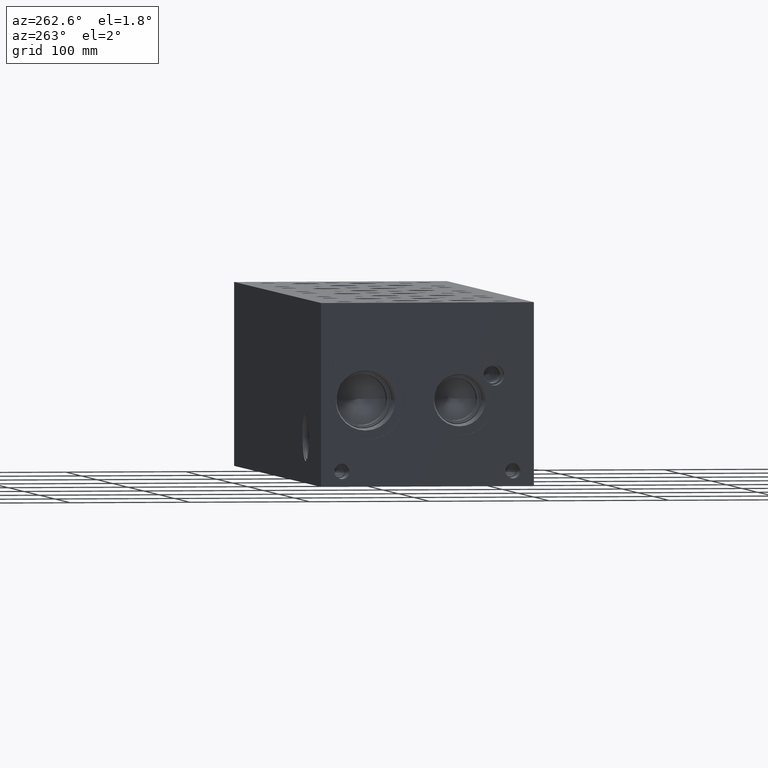
[diagram: clean part render]
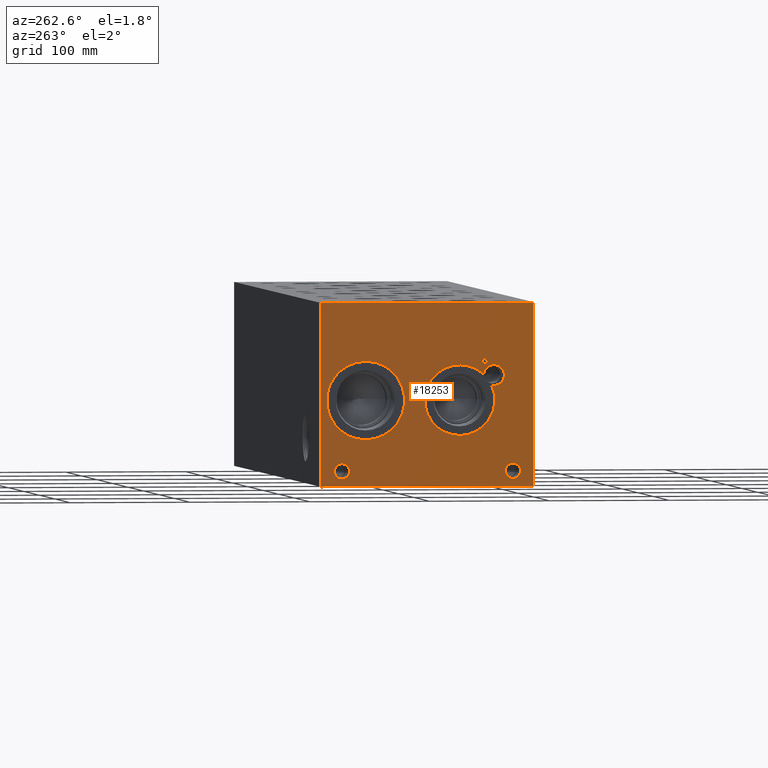
[diagram: same view with one face highlighted and labeled with its STEP entity id]
A machine part, auxiliary view. The second image highlights one B-rep face of the part: STEP entity #18253.
In plain terms, the highlighted planar face has unit normal (-1, 0, 0).
Its self-contained STEP definition (entity closure, byte-faithful):
#537=CIRCLE('',#19078,6.35);
#538=CIRCLE('',#19079,6.35);
#539=CIRCLE('',#19080,6.35);
#540=CIRCLE('',#19081,6.35);
#541=CIRCLE('',#19082,32.5628);
#542=CIRCLE('',#19083,32.5628);
#543=CIRCLE('',#19084,8.6487);
#544=CIRCLE('',#19085,8.6487);
#545=CIRCLE('',#19086,29.2862);
#1516=B_SPLINE_CURVE_WITH_KNOTS('',2,(#30290,#30291,#30292,#30293),
 .UNSPECIFIED.,.F.,.F.,(3,1,3),(0.,1.,2.),.UNSPECIFIED.);
#1518=B_SPLINE_CURVE_WITH_KNOTS('',2,(#30311,#30312,#30313,#30314),
 .UNSPECIFIED.,.F.,.F.,(3,1,3),(0.,1.,2.),.UNSPECIFIED.);
#1520=B_SPLINE_CURVE_WITH_KNOTS('',2,(#30360,#30361,#30362,#30363),
 .UNSPECIFIED.,.F.,.F.,(3,1,3),(0.,1.,2.),.UNSPECIFIED.);
#1522=B_SPLINE_CURVE_WITH_KNOTS('',2,(#30378,#30379,#30380,#30381),
 .UNSPECIFIED.,.F.,.F.,(3,1,3),(0.,1.,2.),.UNSPECIFIED.);
#1599=FACE_BOUND('',#3378,.T.);
#1600=FACE_BOUND('',#3379,.T.);
#1601=FACE_BOUND('',#3380,.T.);
#1602=FACE_BOUND('',#3381,.T.);
#1603=FACE_BOUND('',#3382,.T.);
#1604=FACE_BOUND('',#3383,.T.);
#2325=FACE_OUTER_BOUND('',#3377,.T.);
#3377=EDGE_LOOP('',(#14675,#14676,#14677,#14678));
#3378=EDGE_LOOP('',(#14679,#14680));
#3379=EDGE_LOOP('',(#14681,#14682));
#3380=EDGE_LOOP('',(#14683,#14684));
#3381=EDGE_LOOP('',(#14685,#14686,#14687));
#3382=EDGE_LOOP('',(#14688,#14689,#14690,#14691,#14692,#14693,#14694,#14695));
#3383=EDGE_LOOP('',(#14696,#14697,#14698,#14699,#14700,#14701,#14702,#14703,
#14704));
#3935=LINE('',#24544,#5503);
#5099=LINE('',#30323,#6667);
#5102=LINE('',#30329,#6670);
#5105=LINE('',#30335,#6673);
#5108=LINE('',#30341,#6676);
#5111=LINE('',#30347,#6679);
#5115=LINE('',#30389,#6683);
#5116=LINE('',#30391,#6684);
#5117=LINE('',#30392,#6685);
#5118=LINE('',#30413,#6686);
#5119=LINE('',#30415,#6687);
#5120=LINE('',#30417,#6688);
#5121=LINE('',#30419,#6689);
#5122=LINE('',#30421,#6690);
#5123=LINE('',#30423,#6691);
#5124=LINE('',#30425,#6692);
#5125=LINE('',#30426,#6693);
#5503=VECTOR('',#20152,10.);
#6667=VECTOR('',#22134,10.);
#6670=VECTOR('',#22139,10.);
#6673=VECTOR('',#22144,10.);
#6676=VECTOR('',#22149,10.);
#6679=VECTOR('',#22154,10.);
#6683=VECTOR('',#22162,10.);
#6684=VECTOR('',#22163,10.);
#6685=VECTOR('',#22164,10.);
#6686=VECTOR('',#22183,10.);
#6687=VECTOR('',#22184,10.);
#6688=VECTOR('',#22185,10.);
#6689=VECTOR('',#22186,10.);
#6690=VECTOR('',#22187,10.);
#6691=VECTOR('',#22188,10.);
#6692=VECTOR('',#22189,10.);
#6693=VECTOR('',#22190,10.);
#7048=VERTEX_POINT('',#24537);
#7051=VERTEX_POINT('',#24542);
#8115=VERTEX_POINT('',#30288);
#8116=VERTEX_POINT('',#30289);
#8119=VERTEX_POINT('',#30310);
#8121=VERTEX_POINT('',#30322);
#8123=VERTEX_POINT('',#30328);
#8125=VERTEX_POINT('',#30334);
#8127=VERTEX_POINT('',#30340);
#8129=VERTEX_POINT('',#30346);
#8131=VERTEX_POINT('',#30359);
#8133=VERTEX_POINT('',#30388);
#8134=VERTEX_POINT('',#30390);
#8135=VERTEX_POINT('',#30393);
#8136=VERTEX_POINT('',#30394);
#8137=VERTEX_POINT('',#30397);
#8138=VERTEX_POINT('',#30398);
#8139=VERTEX_POINT('',#30401);
#8140=VERTEX_POINT('',#30402);
#8141=VERTEX_POINT('',#30405);
#8142=VERTEX_POINT('',#30406);
#8143=VERTEX_POINT('',#30408);
#8144=VERTEX_POINT('',#30411);
#8145=VERTEX_POINT('',#30412);
#8146=VERTEX_POINT('',#30414);
#8147=VERTEX_POINT('',#30416);
#8148=VERTEX_POINT('',#30418);
#8149=VERTEX_POINT('',#30420);
#8150=VERTEX_POINT('',#30422);
#8151=VERTEX_POINT('',#30424);
#8879=EDGE_CURVE('',#7048,#7051,#3935,.T.);
#10459=EDGE_CURVE('',#8115,#8116,#1516,.T.);
#10463=EDGE_CURVE('',#8119,#8115,#1518,.T.);
#10466=EDGE_CURVE('',#8121,#8119,#5099,.T.);
#10469=EDGE_CURVE('',#8123,#8121,#5102,.T.);
#10472=EDGE_CURVE('',#8125,#8123,#5105,.T.);
#10475=EDGE_CURVE('',#8127,#8125,#5108,.T.);
#10478=EDGE_CURVE('',#8129,#8127,#5111,.T.);
#10481=EDGE_CURVE('',#8131,#8129,#1520,.T.);
#10484=EDGE_CURVE('',#8116,#8131,#1522,.T.);
#10486=EDGE_CURVE('',#8133,#7048,#5115,.T.);
#10487=EDGE_CURVE('',#8134,#7051,#5116,.T.);
#10488=EDGE_CURVE('',#8133,#8134,#5117,.T.);
#10489=EDGE_CURVE('',#8135,#8136,#537,.T.);
#10490=EDGE_CURVE('',#8136,#8135,#538,.T.);
#10491=EDGE_CURVE('',#8137,#8138,#539,.T.);
#10492=EDGE_CURVE('',#8138,#8137,#540,.T.);
#10493=EDGE_CURVE('',#8139,#8140,#541,.T.);
#10494=EDGE_CURVE('',#8140,#8139,#542,.T.);
#10495=EDGE_CURVE('',#8141,#8142,#543,.T.);
#10496=EDGE_CURVE('',#8142,#8143,#544,.T.);
#10497=EDGE_CURVE('',#8143,#8141,#545,.T.);
#10498=EDGE_CURVE('',#8144,#8145,#5118,.T.);
#10499=EDGE_CURVE('',#8145,#8146,#5119,.T.);
#10500=EDGE_CURVE('',#8146,#8147,#5120,.T.);
#10501=EDGE_CURVE('',#8147,#8148,#5121,.T.);
#10502=EDGE_CURVE('',#8148,#8149,#5122,.T.);
#10503=EDGE_CURVE('',#8149,#8150,#5123,.T.);
#10504=EDGE_CURVE('',#8150,#8151,#5124,.T.);
#10505=EDGE_CURVE('',#8151,#8144,#5125,.T.);
#14675=ORIENTED_EDGE('',*,*,#10486,.T.);
#14676=ORIENTED_EDGE('',*,*,#8879,.T.);
#14677=ORIENTED_EDGE('',*,*,#10487,.F.);
#14678=ORIENTED_EDGE('',*,*,#10488,.F.);
#14679=ORIENTED_EDGE('',*,*,#10489,.T.);
#14680=ORIENTED_EDGE('',*,*,#10490,.T.);
#14681=ORIENTED_EDGE('',*,*,#10491,.T.);
#14682=ORIENTED_EDGE('',*,*,#10492,.T.);
#14683=ORIENTED_EDGE('',*,*,#10493,.T.);
#14684=ORIENTED_EDGE('',*,*,#10494,.T.);
#14685=ORIENTED_EDGE('',*,*,#10495,.T.);
#14686=ORIENTED_EDGE('',*,*,#10496,.T.);
#14687=ORIENTED_EDGE('',*,*,#10497,.T.);
#14688=ORIENTED_EDGE('',*,*,#10498,.T.);
#14689=ORIENTED_EDGE('',*,*,#10499,.T.);
#14690=ORIENTED_EDGE('',*,*,#10500,.T.);
#14691=ORIENTED_EDGE('',*,*,#10501,.T.);
#14692=ORIENTED_EDGE('',*,*,#10502,.T.);
#14693=ORIENTED_EDGE('',*,*,#10503,.T.);
#14694=ORIENTED_EDGE('',*,*,#10504,.T.);
#14695=ORIENTED_EDGE('',*,*,#10505,.T.);
#14696=ORIENTED_EDGE('',*,*,#10459,.T.);
#14697=ORIENTED_EDGE('',*,*,#10484,.T.);
#14698=ORIENTED_EDGE('',*,*,#10481,.T.);
#14699=ORIENTED_EDGE('',*,*,#10478,.T.);
#14700=ORIENTED_EDGE('',*,*,#10475,.T.);
#14701=ORIENTED_EDGE('',*,*,#10472,.T.);
#14702=ORIENTED_EDGE('',*,*,#10469,.T.);
#14703=ORIENTED_EDGE('',*,*,#10466,.T.);
#14704=ORIENTED_EDGE('',*,*,#10463,.T.);
#16980=PLANE('',#19077);
#18253=ADVANCED_FACE('',(#2325,#1599,#1600,#1601,#1602,#1603,#1604),#16980,
 .T.);
#19077=AXIS2_PLACEMENT_3D('',#30387,#22160,#22161);
#19078=AXIS2_PLACEMENT_3D('',#30395,#22165,#22166);
#19079=AXIS2_PLACEMENT_3D('',#30396,#22167,#22168);
#19080=AXIS2_PLACEMENT_3D('',#30399,#22169,#22170);
#19081=AXIS2_PLACEMENT_3D('',#30400,#22171,#22172);
#19082=AXIS2_PLACEMENT_3D('',#30403,#22173,#22174);
#19083=AXIS2_PLACEMENT_3D('',#30404,#22175,#22176);
#19084=AXIS2_PLACEMENT_3D('',#30407,#22177,#22178);
#19085=AXIS2_PLACEMENT_3D('',#30409,#22179,#22180);
#19086=AXIS2_PLACEMENT_3D('',#30410,#22181,#22182);
#20152=DIRECTION('',(0.,0.,1.));
#22134=DIRECTION('',(0.,-1.,-1.11355060845355E-14));
#22139=DIRECTION('',(0.,-4.19611858128769E-15,1.));
#22144=DIRECTION('',(0.,1.,0.));
#22149=DIRECTION('',(0.,3.75218139805004E-15,-1.));
#22154=DIRECTION('',(0.,1.,0.));
#22160=DIRECTION('center_axis',(-1.,0.,0.));
#22161=DIRECTION('ref_axis',(0.,-1.,0.));
#22162=DIRECTION('',(0.,-1.,0.));
#22163=DIRECTION('',(0.,-1.,0.));
#22164=DIRECTION('',(0.,0.,1.));
#22165=DIRECTION('center_axis',(1.,0.,0.));
#22166=DIRECTION('ref_axis',(0.,1.,0.));
#22167=DIRECTION('center_axis',(1.,0.,0.));
#22168=DIRECTION('ref_axis',(0.,1.,0.));
#22169=DIRECTION('center_axis',(1.,0.,0.));
#22170=DIRECTION('ref_axis',(0.,1.,0.));
#22171=DIRECTION('center_axis',(1.,0.,0.));
#22172=DIRECTION('ref_axis',(0.,1.,0.));
#22173=DIRECTION('center_axis',(1.,0.,0.));
#22174=DIRECTION('ref_axis',(0.,0.,1.));
#22175=DIRECTION('center_axis',(1.,0.,0.));
#22176=DIRECTION('ref_axis',(0.,0.,1.));
#22177=DIRECTION('center_axis',(1.,0.,0.));
#22178=DIRECTION('ref_axis',(0.,1.,0.));
#22179=DIRECTION('center_axis',(1.,0.,0.));
#22180=DIRECTION('ref_axis',(0.,1.,0.));
#22181=DIRECTION('center_axis',(1.,0.,0.));
#22182=DIRECTION('ref_axis',(0.,0.,1.));
#22183=DIRECTION('',(0.,1.,0.));
#22184=DIRECTION('',(0.,0.,1.));
#22185=DIRECTION('',(0.,1.,0.));
#22186=DIRECTION('',(0.,0.,1.));
#22187=DIRECTION('',(0.,-1.,-6.95969130283466E-15));
#22188=DIRECTION('',(0.,0.,-1.));
#22189=DIRECTION('',(0.,1.,8.33818088455555E-15));
#22190=DIRECTION('',(0.,0.,-1.));
#24537=CARTESIAN_POINT('',(0.,0.,0.));
#24542=CARTESIAN_POINT('',(0.,0.,152.4));
#24544=CARTESIAN_POINT('',(0.,0.,0.));
#30288=CARTESIAN_POINT('',(0.,39.7556827976406,105.172518143971));
#30289=CARTESIAN_POINT('',(0.,38.999240345468,103.654487372604));
#30290=CARTESIAN_POINT('Ctrl Pts',(0.,39.7556827976406,105.172518143971));
#30291=CARTESIAN_POINT('Ctrl Pts',(0.,39.4006179731514,104.930662393956));
#30292=CARTESIAN_POINT('Ctrl Pts',(0.,38.999240345468,104.184511675827));
#30293=CARTESIAN_POINT('Ctrl Pts',(0.,38.999240345468,103.654487372604));
#30310=CARTESIAN_POINT('',(0.,41.4177978456117,105.568749904633));
#30311=CARTESIAN_POINT('Ctrl Pts',(0.,41.4177978456117,105.568749904633));
#30312=CARTESIAN_POINT('Ctrl Pts',(0.,40.8517524732376,105.568749904633));
#30313=CARTESIAN_POINT('Ctrl Pts',(0.,40.059288951914,105.383498691856));
#30314=CARTESIAN_POINT('Ctrl Pts',(0.,39.7556827976406,105.172518143971));
#30322=CARTESIAN_POINT('',(0.,43.0130166223022,105.568749904633));
#30323=CARTESIAN_POINT('',(0.,110.406508311151,105.568749904633));
#30328=CARTESIAN_POINT('',(0.,43.0130166223022,99.21875));
#30329=CARTESIAN_POINT('',(0.,43.0130166223024,49.6093749999997));
#30334=CARTESIAN_POINT('',(0.,42.1690944307627,99.21875));
#30335=CARTESIAN_POINT('',(0.,109.984547215381,99.21875));
#30340=CARTESIAN_POINT('',(0.,42.1690944307627,101.585848829928));
#30341=CARTESIAN_POINT('',(0.,42.1690944307629,50.7929244149637));
#30346=CARTESIAN_POINT('',(0.,41.4538189147628,101.585848829928));
#30347=CARTESIAN_POINT('',(0.,109.626909457381,101.585848829928));
#30359=CARTESIAN_POINT('',(0.,39.5549939837989,102.24451980869));
#30360=CARTESIAN_POINT('Ctrl Pts',(0.,39.5549939837989,102.24451980869));
#30361=CARTESIAN_POINT('Ctrl Pts',(0.,39.8843294731802,101.920330186331));
#30362=CARTESIAN_POINT('Ctrl Pts',(0.,40.7745644679139,101.585848829928));
#30363=CARTESIAN_POINT('Ctrl Pts',(0.,41.4538189147628,101.585848829928));
#30378=CARTESIAN_POINT('Ctrl Pts',(0.,38.999240345468,103.654487372604));
#30379=CARTESIAN_POINT('Ctrl Pts',(0.,38.999240345468,103.242818010877));
#30380=CARTESIAN_POINT('Ctrl Pts',(0.,39.2925547656982,102.501813159769));
#30381=CARTESIAN_POINT('Ctrl Pts',(0.,39.5549939837989,102.24451980869));
#30387=CARTESIAN_POINT('Origin',(0.,177.8,0.));
#30388=CARTESIAN_POINT('',(0.,177.8,0.));
#30389=CARTESIAN_POINT('',(0.,177.8,0.));
#30390=CARTESIAN_POINT('',(0.,177.8,152.4));
#30391=CARTESIAN_POINT('',(0.,177.8,152.4));
#30392=CARTESIAN_POINT('',(0.,177.8,0.));
#30393=CARTESIAN_POINT('',(0.,166.6748,12.7));
#30394=CARTESIAN_POINT('',(0.,153.9748,12.7));
#30395=CARTESIAN_POINT('Origin',(0.,160.3248,12.7));
#30396=CARTESIAN_POINT('Origin',(0.,160.3248,12.7));
#30397=CARTESIAN_POINT('',(0.,23.8252,12.7));
#30398=CARTESIAN_POINT('',(0.,11.1252,12.7));
#30399=CARTESIAN_POINT('Origin',(0.,17.4752,12.7));
#30400=CARTESIAN_POINT('Origin',(0.,17.4752,12.7));
#30401=CARTESIAN_POINT('',(0.,140.4874,103.9876));
#30402=CARTESIAN_POINT('',(0.,140.4874,38.862));
#30403=CARTESIAN_POINT('Origin',(0.,140.4874,71.4248));
#30404=CARTESIAN_POINT('Origin',(0.,140.4874,71.4248));
#30405=CARTESIAN_POINT('',(0.,41.9402741828727,92.8323746062911));
#30406=CARTESIAN_POINT('',(0.,24.6761,92.075));
#30407=CARTESIAN_POINT('Origin',(0.,33.3248,92.075));
#30408=CARTESIAN_POINT('',(0.,35.3167343442511,83.6588126649775));
#30409=CARTESIAN_POINT('Origin',(0.,33.3248,92.075));
#30410=CARTESIAN_POINT('Origin',(0.,61.9252,71.4248));
#30411=CARTESIAN_POINT('',(0.,167.687084728547,100.0125));
#30412=CARTESIAN_POINT('',(0.,168.531006920086,100.0125));
#30413=CARTESIAN_POINT('',(0.,172.743542364273,100.0125));
#30414=CARTESIAN_POINT('',(0.,168.531006920086,105.611203319482));
#30415=CARTESIAN_POINT('',(0.,168.531006920087,50.00625));
#30416=CARTESIAN_POINT('',(0.,170.661395867022,105.611203319482));
#30417=CARTESIAN_POINT('',(0.,173.165503460043,105.611203319482));
#30418=CARTESIAN_POINT('',(0.,170.661395867022,106.362499904633));
#30419=CARTESIAN_POINT('',(0.,170.661395867022,52.8056016597408));
#30420=CARTESIAN_POINT('',(0.,165.556695781612,106.362499904633));
#30421=CARTESIAN_POINT('',(0.,174.23069793351,106.362499904633));
#30422=CARTESIAN_POINT('',(0.,165.556695781612,105.611203319482));
#30423=CARTESIAN_POINT('',(0.,165.556695781612,53.1812499523163));
#30424=CARTESIAN_POINT('',(0.,167.687084728547,105.611203319482));
#30425=CARTESIAN_POINT('',(0.,171.678347890806,105.611203319482));
#30426=CARTESIAN_POINT('',(0.,167.687084728547,52.8056016597408));